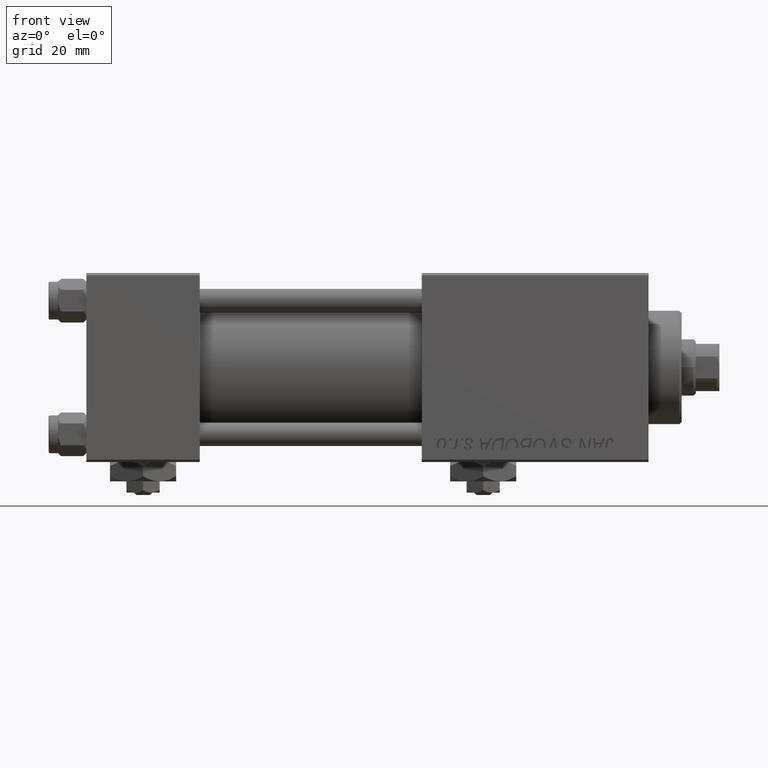
[diagram: clean part render]
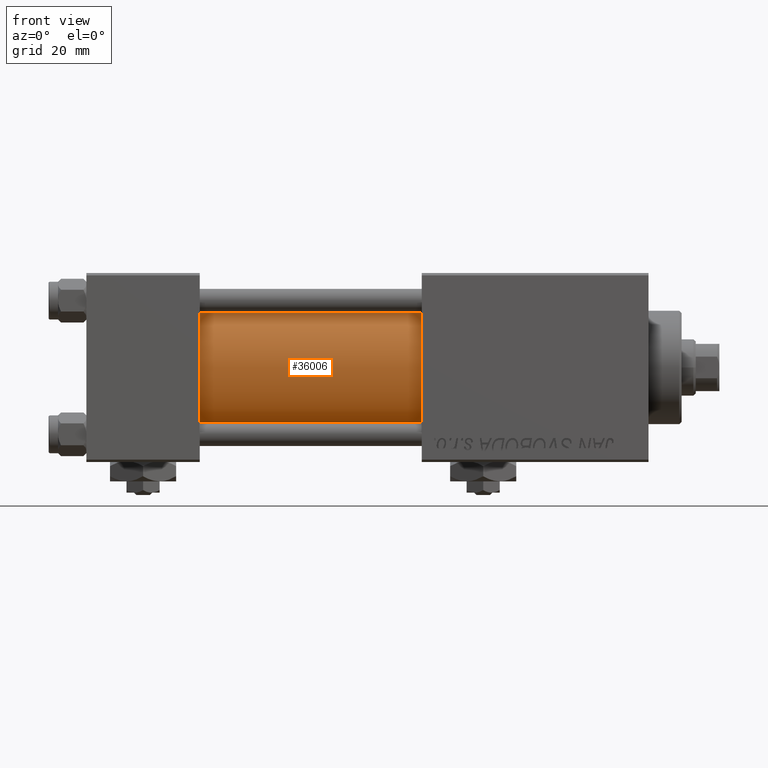
[diagram: same view with one face highlighted and labeled with its STEP entity id]
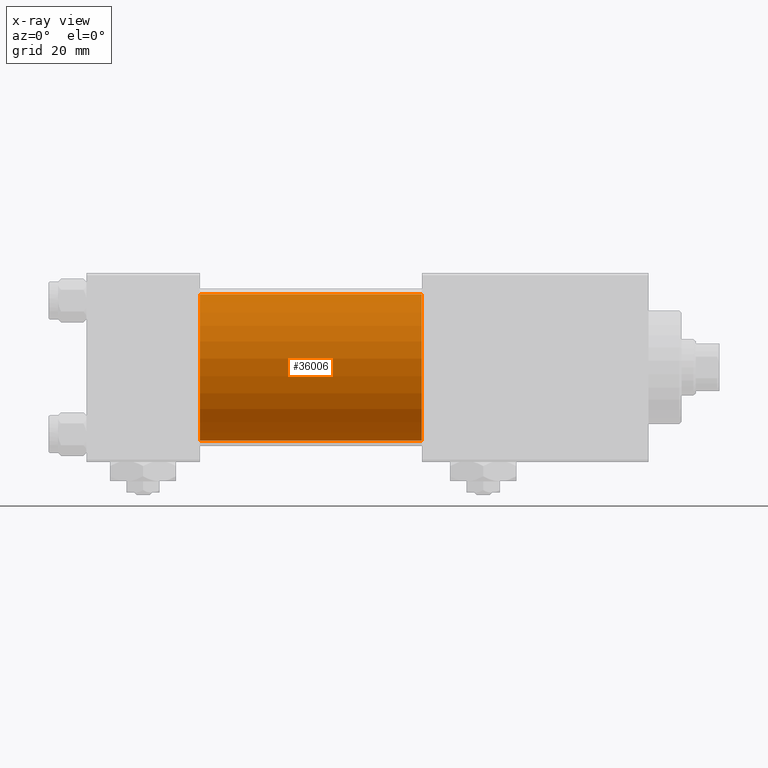
[diagram: x-ray of the same camera — body ghosted, the highlighted face saturated]
A machine part, front view. The second image highlights one B-rep face of the part: STEP entity #36006.
The next image is the same camera in x-ray: the body ghosted, the highlighted face saturated — about 0% of this face is hidden behind the body in this view.
In plain terms, the highlighted cylindrical surface (partial cylindrical patch) has radius 15.5 mm, axis along (-1, -0, -0).
Its self-contained STEP definition (entity closure, byte-faithful):
#332 = VECTOR ( 'NONE', #46829, 1000.000000000000000 ) ;
#3194 = VERTEX_POINT ( 'NONE', #11746 ) ;
#4011 = EDGE_CURVE ( 'NONE', #35856, #13157, #41321, .T. ) ;
#4134 = ORIENTED_EDGE ( 'NONE', *, *, #49850, .F. ) ;
#9509 = DIRECTION ( 'NONE',  ( 1.000000000000000000, 0.000000000000000000, 0.000000000000000000 ) ) ;
#11746 = CARTESIAN_POINT ( 'NONE',  ( 24.00000000000000000, -7.038826752868131828E-16, -15.50000000000000000 ) ) ;
#12930 = CARTESIAN_POINT ( 'NONE',  ( 24.00000000000000000, -2.602085213965210642E-15, 0.000000000000000000 ) ) ;
#13157 = VERTEX_POINT ( 'NONE', #43694 ) ;
#13843 = VERTEX_POINT ( 'NONE', #51940 ) ;
#13868 = LINE ( 'NONE', #42355, #332 ) ;
#14502 = AXIS2_PLACEMENT_3D ( 'NONE', #34968, #47378, #31007 ) ;
#15919 = VECTOR ( 'NONE', #34171, 1000.000000000000000 ) ;
#20389 = CIRCLE ( 'NONE', #14502, 15.50000000000000000 ) ;
#21274 = CARTESIAN_POINT ( 'NONE',  ( 71.00000000000001421, -2.602085213965210642E-15, 15.50000000000000000 ) ) ;
#23291 = EDGE_CURVE ( 'NONE', #13843, #3194, #13868, .T. ) ;
#25010 = FACE_OUTER_BOUND ( 'NONE', #51427, .T. ) ;
#25935 = AXIS2_PLACEMENT_3D ( 'NONE', #29484, #29217, #33701 ) ;
#26475 = EDGE_CURVE ( 'NONE', #13157, #3194, #26506, .T. ) ;
#26506 = CIRCLE ( 'NONE', #48436, 15.50000000000000000 ) ;
#29217 = DIRECTION ( 'NONE',  ( -1.000000000000000000, -0.000000000000000000, -0.000000000000000000 ) ) ;
#29484 = CARTESIAN_POINT ( 'NONE',  ( 71.00000000000001421, -2.602085213965210642E-15, 0.000000000000000000 ) ) ;
#31007 = DIRECTION ( 'NONE',  ( 0.000000000000000000, 0.000000000000000000, -1.000000000000000000 ) ) ;
#33701 = DIRECTION ( 'NONE',  ( 0.000000000000000000, 0.000000000000000000, 1.000000000000000000 ) ) ;
#34171 = DIRECTION ( 'NONE',  ( -1.000000000000000000, -0.000000000000000000, -0.000000000000000000 ) ) ;
#34968 = CARTESIAN_POINT ( 'NONE',  ( 71.00000000000001421, -2.602085213965210642E-15, 0.000000000000000000 ) ) ;
#35856 = VERTEX_POINT ( 'NONE', #44541 ) ;
#36006 = ADVANCED_FACE ( 'NONE', ( #25010 ), #41629, .T. ) ;
#36839 = ORIENTED_EDGE ( 'NONE', *, *, #23291, .F. ) ;
#38652 = ORIENTED_EDGE ( 'NONE', *, *, #26475, .T. ) ;
#41187 = ORIENTED_EDGE ( 'NONE', *, *, #4011, .T. ) ;
#41321 = LINE ( 'NONE', #21274, #15919 ) ;
#41629 = CYLINDRICAL_SURFACE ( 'NONE', #25935, 15.50000000000000000 ) ;
#42355 = CARTESIAN_POINT ( 'NONE',  ( 71.00000000000001421, -7.038826752868131828E-16, -15.50000000000000000 ) ) ;
#43694 = CARTESIAN_POINT ( 'NONE',  ( 24.00000000000000000, -2.602085213965210642E-15, 15.50000000000000000 ) ) ;
#44541 = CARTESIAN_POINT ( 'NONE',  ( 71.00000000000001421, -2.602085213965210642E-15, 15.50000000000000000 ) ) ;
#46829 = DIRECTION ( 'NONE',  ( -1.000000000000000000, -0.000000000000000000, -0.000000000000000000 ) ) ;
#47378 = DIRECTION ( 'NONE',  ( 1.000000000000000000, 0.000000000000000000, 0.000000000000000000 ) ) ;
#48436 = AXIS2_PLACEMENT_3D ( 'NONE', #12930, #9509, #48801 ) ;
#48801 = DIRECTION ( 'NONE',  ( 0.000000000000000000, 0.000000000000000000, 1.000000000000000000 ) ) ;
#49850 = EDGE_CURVE ( 'NONE', #35856, #13843, #20389, .T. ) ;
#51427 = EDGE_LOOP ( 'NONE', ( #36839, #4134, #41187, #38652 ) ) ;
#51940 = CARTESIAN_POINT ( 'NONE',  ( 71.00000000000001421, -7.038826752868131828E-16, -15.50000000000000000 ) ) ;